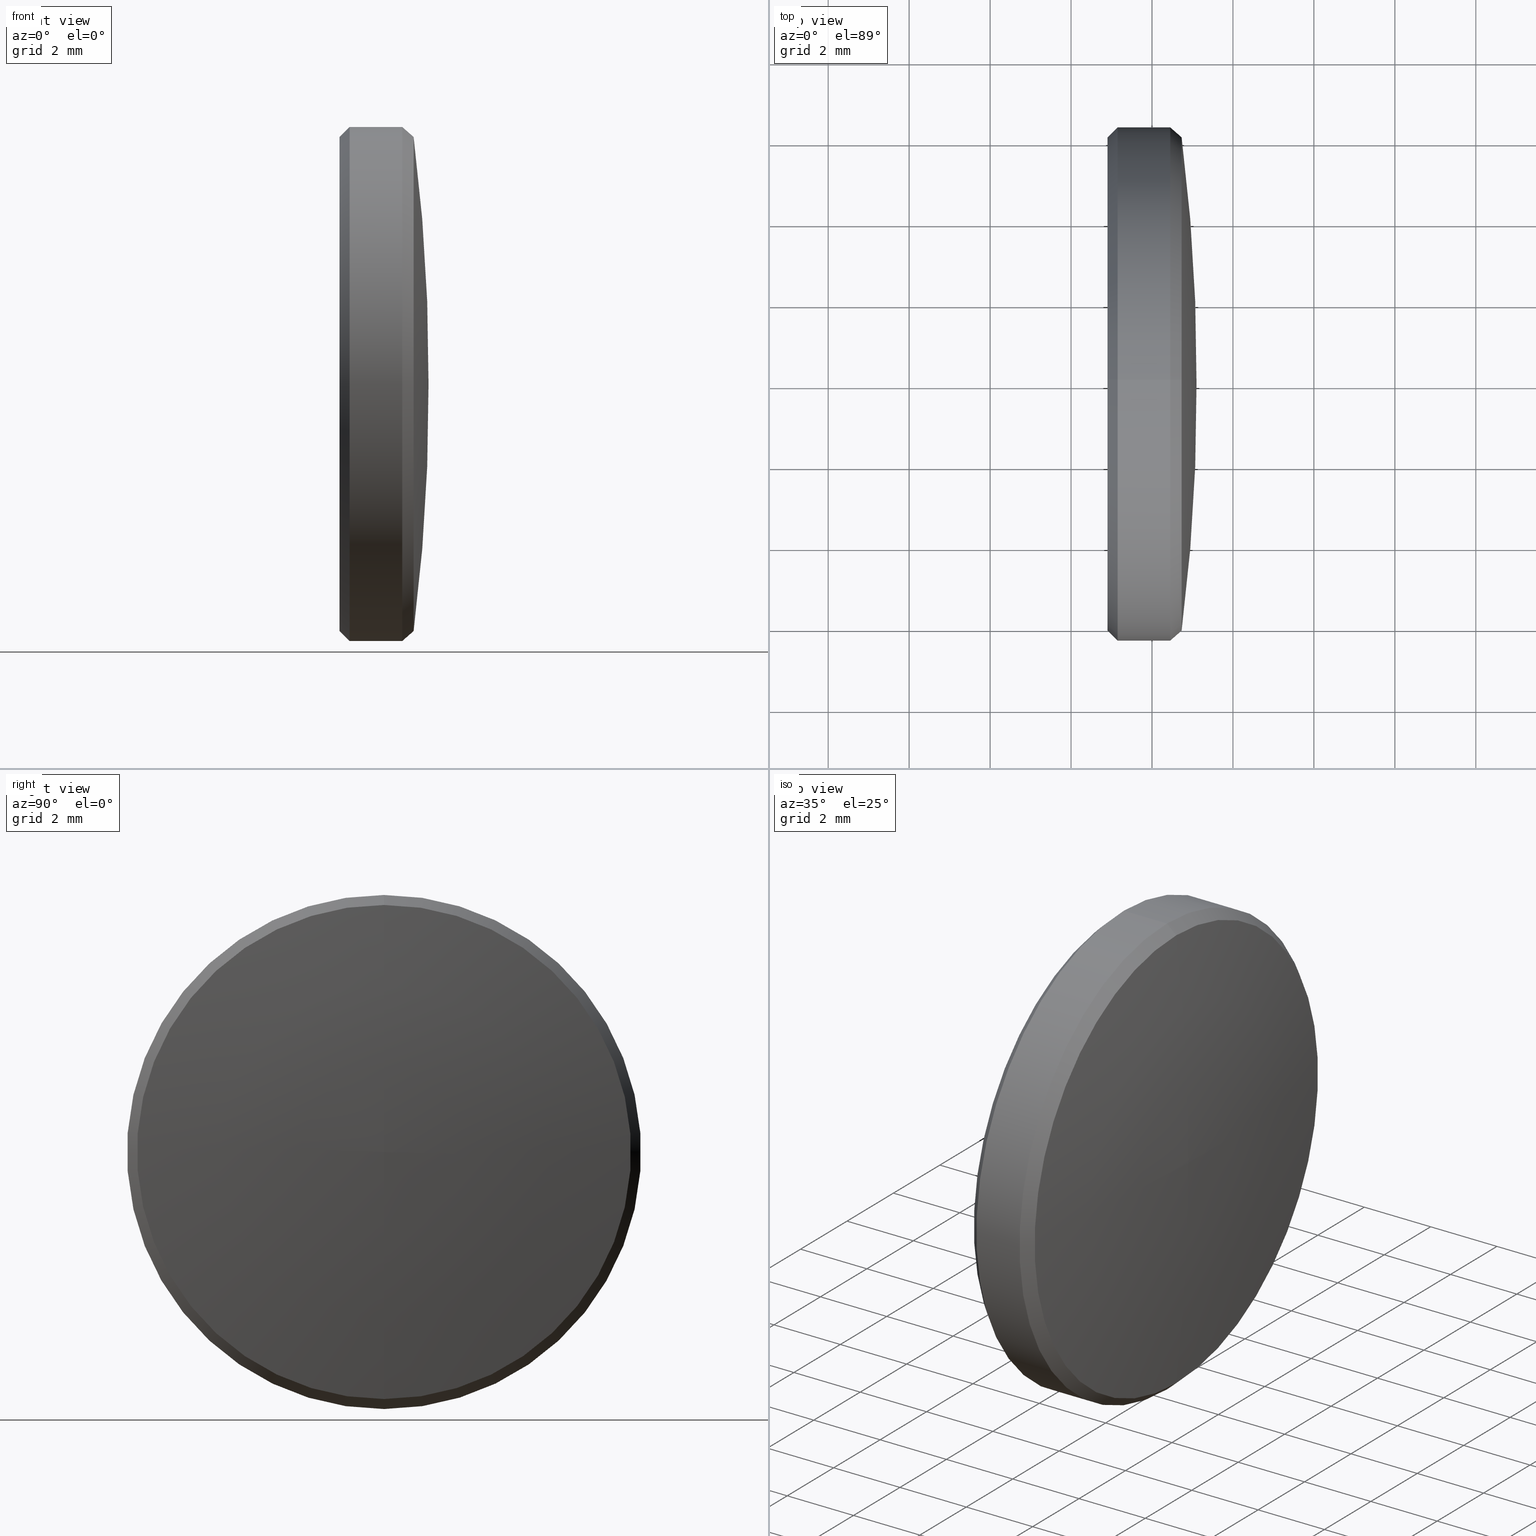
[diagram: canonical four-view strip — front | top / right | iso, engineering-drawing reading convention]
A machine part, canonical four-view strip (front | top / right | iso — engineering-drawing reading convention). The complete STEP part file that produces these views, byte-faithful:
ISO-10303-21;
HEADER;
FILE_DESCRIPTION (( 'STEP AP203' ),
    '1' );
FILE_NAME ('4277-E0W.STEP',
    '2015-05-29T14:20:30',
    ( 'admin' ),
    ( '' ),
    'SwSTEP 2.0',
    'SolidWorks 2014',
    '' );
FILE_SCHEMA (( 'CONFIG_CONTROL_DESIGN' ));
ENDSEC;

DATA;
#1 = VERTEX_POINT ( 'NONE', #218 ) ;
#2 = ORIENTED_EDGE ( 'NONE', *, *, #142, .F. ) ;
#3 = CARTESIAN_POINT ( 'NONE',  ( -44.89908574560622900, 0.0000000000000000000, 0.2900182207492126900 ) ) ;
#4 = DIRECTION ( 'NONE',  ( 0.0000000000000000000, 0.0000000000000000000, 1.000000000000000000 ) ) ;
#5 = LOCAL_TIME ( 10, 20, 30.00000000000000000, #172 ) ;
#6 = DIRECTION ( 'NONE',  ( 0.0000000000000000000, 0.0000000000000000000, 1.000000000000000000 ) ) ;
#7 = APPROVAL_STATUS ( 'not_yet_approved' ) ;
#8 = SECURITY_CLASSIFICATION_LEVEL ( 'unclassified' ) ;
#9 = PRODUCT_DEFINITION_FORMATION_WITH_SPECIFIED_SOURCE ( 'ANY', '', #139, .NOT_KNOWN. ) ;
#10 = APPROVAL_ROLE ( '' ) ;
#11 = MECHANICAL_CONTEXT ( 'NONE', #182, 'mechanical' ) ;
#12 = EDGE_LOOP ( 'NONE', ( #253, #68, #116 ) ) ;
#13 = ADVANCED_FACE ( 'NONE', ( #260 ), #167, .T. ) ;
#14 = DIRECTION ( 'NONE',  ( -1.000000000000000000, -0.0000000000000000000, -0.0000000000000000000 ) ) ;
#15 = EDGE_LOOP ( 'NONE', ( #60, #115 ) ) ;
#16 = FACE_OUTER_BOUND ( 'NONE', #112, .T. ) ;
#17 = DIRECTION ( 'NONE',  ( 1.000000000000000000, 0.0000000000000000000, 0.0000000000000000000 ) ) ;
#18 = APPLICATION_CONTEXT ( 'configuration controlled 3d designs of mechanical parts and assemblies' ) ;
#19 = CARTESIAN_POINT ( 'NONE',  ( 1.100000000000000100, 0.0000000000000000000, 0.0000000000000000000 ) ) ;
#20 = CONICAL_SURFACE ( 'NONE', #238, 6.100000000000001400, 0.7853981633974466100 ) ;
#21 = CALENDAR_DATE ( 2015, 29, 5 ) ;
#22 = CARTESIAN_POINT ( 'NONE',  ( -1.100000000000000100, 7.470345474798856300E-016, 6.100000000000001400 ) ) ;
#23 = AXIS2_PLACEMENT_3D ( 'NONE', #46, #184, #254 ) ;
#24 = FACE_OUTER_BOUND ( 'NONE', #15, .T. ) ;
#25 = EDGE_CURVE ( 'NONE', #119, #93, #273, .T. ) ;
#26 = CIRCLE ( 'NONE', #160, 6.350000000000002300 ) ;
#27 = DIRECTION ( 'NONE',  ( -1.000000000000000000, -0.0000000000000000000, -0.0000000000000000000 ) ) ;
#28 = CARTESIAN_POINT ( 'NONE',  ( 0.4499999999992704300, 7.776507174585695100E-016, -6.350000000000002300 ) ) ;
#29 = LOCAL_TIME ( 10, 20, 30.00000000000000000, #201 ) ;
#30 = FACE_OUTER_BOUND ( 'NONE', #118, .T. ) ;
#31 = AXIS2_PLACEMENT_3D ( 'NONE', #152, #48, #35 ) ;
#32 = ORIENTED_EDGE ( 'NONE', *, *, #194, .F. ) ;
#33 = AXIS2_PLACEMENT_3D ( 'NONE', #161, #174, #156 ) ;
#34 = DIRECTION ( 'NONE',  ( 0.0000000000000000000, 0.0000000000000000000, 1.000000000000000000 ) ) ;
#35 = DIRECTION ( 'NONE',  ( 0.0000000000000000000, 0.0000000000000000000, -1.000000000000000000 ) ) ;
#36 = DATE_AND_TIME ( #129, #5 ) ;
#37 = CIRCLE ( 'NONE', #40, 6.350000000000002300 ) ;
#38 = CARTESIAN_POINT ( 'NONE',  ( -0.8499999999999980900, 0.0000000000000000000, 0.0000000000000000000 ) ) ;
#39 = ORIENTED_EDGE ( 'NONE', *, *, #123, .T. ) ;
#40 = AXIS2_PLACEMENT_3D ( 'NONE', #38, #207, #209 ) ;
#41 = AXIS2_PLACEMENT_3D ( 'NONE', #153, #275, #168 ) ;
#42 = EDGE_LOOP ( 'NONE', ( #53, #131, #126, #82 ) ) ;
#43 = DATE_AND_TIME ( #200, #90 ) ;
#44 = CARTESIAN_POINT ( 'NONE',  ( -44.89908574560622900, 3.551698857349338500E-017, -0.2900182207492126900 ) ) ;
#45 = CIRCLE ( 'NONE', #211, 6.100000000000001400 ) ;
#46 = CARTESIAN_POINT ( 'NONE',  ( -1.100000000000000100, 0.0000000000000000000, 0.0000000000000000000 ) ) ;
#47 = FACE_OUTER_BOUND ( 'NONE', #146, .T. ) ;
#48 = DIRECTION ( 'NONE',  ( 1.000000000000000000, 0.0000000000000000000, 0.0000000000000000000 ) ) ;
#49 = EDGE_LOOP ( 'NONE', ( #203, #39, #133, #240 ) ) ;
#50 = DIRECTION ( 'NONE',  ( -0.7522428910702642100, 8.069025117982657200E-017, -0.6588859027436013700 ) ) ;
#51 = ORGANIZATION ( 'UNSPECIFIED', 'UNSPECIFIED', '' ) ;
#52 = DIRECTION ( 'NONE',  ( -1.000000000000000000, -0.0000000000000000000, -0.0000000000000000000 ) ) ;
#53 = ORIENTED_EDGE ( 'NONE', *, *, #282, .F. ) ;
#54 = AXIS2_PLACEMENT_3D ( 'NONE', #75, #27, #204 ) ;
#55 = PERSON_AND_ORGANIZATION_ROLE ( 'creator' ) ;
#56 = LINE ( 'NONE', #220, #185 ) ;
#57 = ORIENTED_EDGE ( 'NONE', *, *, #278, .T. ) ;
#58 = EDGE_CURVE ( 'NONE', #1, #63, #26, .T. ) ;
#59 = LOCAL_TIME ( 10, 20, 30.00000000000000000, #186 ) ;
#60 = ORIENTED_EDGE ( 'NONE', *, *, #150, .T. ) ;
#61 = CC_DESIGN_PERSON_AND_ORGANIZATION_ASSIGNMENT ( #242, #225, ( #154 ) ) ;
#62 = APPROVAL_PERSON_ORGANIZATION ( #134, #215, #244 ) ;
#63 = VERTEX_POINT ( 'NONE', #28 ) ;
#64 = CARTESIAN_POINT ( 'NONE',  ( 0.7321638494021294200, 7.473840680126849300E-016, -6.102854051740002300 ) ) ;
#65 = CC_DESIGN_APPROVAL ( #187, ( #136 ) ) ;
#66 = CARTESIAN_POINT ( 'NONE',  ( -1.100000000000000100, 0.0000000000000000000, -6.100000000000001400 ) ) ;
#67 = ORIENTED_EDGE ( 'NONE', *, *, #232, .T. ) ;
#68 = ORIENTED_EDGE ( 'NONE', *, *, #194, .T. ) ;
#69 = APPROVAL_STATUS ( 'not_yet_approved' ) ;
#70 = ORIENTED_EDGE ( 'NONE', *, *, #171, .F. ) ;
#71 = DATE_TIME_ROLE ( 'classification_date' ) ;
#72 = ORIENTED_EDGE ( 'NONE', *, *, #110, .T. ) ;
#73 = CARTESIAN_POINT ( 'NONE',  ( -44.89908574560622900, 0.0000000000000000000, 0.0000000000000000000 ) ) ;
#74 = CC_DESIGN_APPROVAL ( #215, ( #9 ) ) ;
#75 = CARTESIAN_POINT ( 'NONE',  ( 0.4499999999992704300, 0.0000000000000000000, 0.0000000000000000000 ) ) ;
#76 = CYLINDRICAL_SURFACE ( 'NONE', #41, 6.350000000000002300 ) ;
#77 = VERTEX_POINT ( 'NONE', #249 ) ;
#78 = DIRECTION ( 'NONE',  ( 0.7071067811865487900, 8.659560562354918100E-017, 0.7071067811865463500 ) ) ;
#79 = ADVANCED_FACE ( 'NONE', ( #16 ), #179, .T. ) ;
#80 = APPROVAL_PERSON_ORGANIZATION ( #125, #187, #199 ) ;
#81 = ORIENTED_EDGE ( 'NONE', *, *, #132, .F. ) ;
#82 = ORIENTED_EDGE ( 'NONE', *, *, #110, .F. ) ;
#83 = CARTESIAN_POINT ( 'NONE',  ( 0.4499999999992704300, 0.0000000000000000000, 0.0000000000000000000 ) ) ;
#84 = SHAPE_DEFINITION_REPRESENTATION ( #130, #206 ) ;
#85 = CARTESIAN_POINT ( 'NONE',  ( -0.8499999999999980900, 0.0000000000000000000, 6.350000000000002300 ) ) ;
#86 = ORIENTED_EDGE ( 'NONE', *, *, #98, .F. ) ;
#87 = CC_DESIGN_PERSON_AND_ORGANIZATION_ASSIGNMENT ( #104, #55, ( #9 ) ) ;
#88 = ORIENTED_EDGE ( 'NONE', *, *, #89, .T. ) ;
#89 = EDGE_CURVE ( 'NONE', #101, #103, #288, .T. ) ;
#90 = LOCAL_TIME ( 10, 20, 30.00000000000000000, #270 ) ;
#91 = AXIS2_PLACEMENT_3D ( 'NONE', #83, #256, #6 ) ;
#92 = CARTESIAN_POINT ( 'NONE',  ( 0.7321638494021294200, 0.0000000000000000000, 6.102854051740002300 ) ) ;
#93 = VERTEX_POINT ( 'NONE', #85 ) ;
#94 = DIRECTION ( 'NONE',  ( 1.000000000000000000, 0.0000000000000000000, 0.0000000000000000000 ) ) ;
#95 = AXIS2_PLACEMENT_3D ( 'NONE', #121, #17, #159 ) ;
#96 = CARTESIAN_POINT ( 'NONE',  ( -1.100000000000000100, 0.0000000000000000000, 0.0000000000000000000 ) ) ;
#97 = VERTEX_POINT ( 'NONE', #233 ) ;
#98 = EDGE_CURVE ( 'NONE', #97, #77, #281, .T. ) ;
#99 = FACE_OUTER_BOUND ( 'NONE', #49, .T. ) ;
#100 = AXIS2_PLACEMENT_3D ( 'NONE', #105, #301, #4 ) ;
#101 = VERTEX_POINT ( 'NONE', #19 ) ;
#102 = ORIENTED_EDGE ( 'NONE', *, *, #132, .T. ) ;
#103 = VERTEX_POINT ( 'NONE', #92 ) ;
#104 = PERSON_AND_ORGANIZATION ( #196, #51 ) ;
#105 = CARTESIAN_POINT ( 'NONE',  ( 0.7321638494021259800, 0.0000000000000000000, 0.0000000000000000000 ) ) ;
#106 = DIRECTION ( 'NONE',  ( -1.000000000000000000, -0.0000000000000000000, -0.0000000000000000000 ) ) ;
#107 = DIRECTION ( 'NONE',  ( 0.0000000000000000000, -1.224646799147353200E-016, 1.000000000000000000 ) ) ;
#108 = CLOSED_SHELL ( 'NONE', ( #13, #79, #224, #291, #128, #214, #135, #277, #241 ) ) ;
#109 = CIRCLE ( 'NONE', #100, 6.102854051739994300 ) ;
#110 = EDGE_CURVE ( 'NONE', #103, #1, #269, .T. ) ;
#111 = DIRECTION ( 'NONE',  ( 0.0000000000000000000, 0.0000000000000000000, -1.000000000000000000 ) ) ;
#112 = EDGE_LOOP ( 'NONE', ( #86, #102, #122, #2 ) ) ;
#113 = ORIENTED_EDGE ( 'NONE', *, *, #142, .T. ) ;
#114 = VECTOR ( 'NONE', #217, 1000.000000000000000 ) ;
#115 = ORIENTED_EDGE ( 'NONE', *, *, #98, .T. ) ;
#116 = ORIENTED_EDGE ( 'NONE', *, *, #282, .T. ) ;
#117 = PERSON_AND_ORGANIZATION ( #196, #51 ) ;
#118 = EDGE_LOOP ( 'NONE', ( #81, #251, #113, #151 ) ) ;
#119 = VERTEX_POINT ( 'NONE', #294 ) ;
#120 = AXIS2_PLACEMENT_3D ( 'NONE', #158, #289, #34 ) ;
#121 = CARTESIAN_POINT ( 'NONE',  ( 0.7321638494021259800, 0.0000000000000000000, 0.0000000000000000000 ) ) ;
#122 = ORIENTED_EDGE ( 'NONE', *, *, #25, .F. ) ;
#123 = EDGE_CURVE ( 'NONE', #63, #119, #56, .T. ) ;
#124 = APPROVAL_DATE_TIME ( #36, #215 ) ;
#125 = PERSON_AND_ORGANIZATION ( #196, #51 ) ;
#126 = ORIENTED_EDGE ( 'NONE', *, *, #58, .F. ) ;
#127 = AXIS2_PLACEMENT_3D ( 'NONE', #73, #106, #166 ) ;
#128 = ADVANCED_FACE ( 'NONE', ( #24 ), #236, .F. ) ;
#129 = CALENDAR_DATE ( 2015, 29, 5 ) ;
#130 = PRODUCT_DEFINITION_SHAPE ( 'NONE', 'NONE',  #136 ) ;
#131 = ORIENTED_EDGE ( 'NONE', *, *, #171, .T. ) ;
#132 = EDGE_CURVE ( 'NONE', #97, #93, #234, .T. ) ;
#133 = ORIENTED_EDGE ( 'NONE', *, *, #25, .T. ) ;
#134 = PERSON_AND_ORGANIZATION ( #196, #51 ) ;
#135 = ADVANCED_FACE ( 'NONE', ( #192 ), #197, .T. ) ;
#136 = PRODUCT_DEFINITION ( 'UNKNOWN', '', #9, #165 ) ;
#137 = CARTESIAN_POINT ( 'NONE',  ( -1.100000000000000100, 0.0000000000000000000, 0.0000000000000000000 ) ) ;
#138 = ORIENTED_EDGE ( 'NONE', *, *, #123, .F. ) ;
#139 = PRODUCT ( '4277-E0W', '4277-E0W', '', ( #11 ) ) ;
#140 = CONICAL_SURFACE ( 'NONE', #54, 6.350000000000002300, 0.7193367645129472600 ) ;
#141 = AXIS2_PLACEMENT_3D ( 'NONE', #271, #147, #94 ) ;
#142 = EDGE_CURVE ( 'NONE', #77, #119, #205, .T. ) ;
#143 = PERSON_AND_ORGANIZATION ( #196, #51 ) ;
#144 = CIRCLE ( 'NONE', #95, 6.102854051739994300 ) ;
#145 = UNCERTAINTY_MEASURE_WITH_UNIT (LENGTH_MEASURE( 1.000000000000000100E-005 ), #268, 'distance_accuracy_value', 'NONE');
#146 = EDGE_LOOP ( 'NONE', ( #70, #227, #72, #237 ) ) ;
#147 = DIRECTION ( 'NONE',  ( 0.0000000000000000000, 0.0000000000000000000, 1.000000000000000000 ) ) ;
#148 = ORIENTED_EDGE ( 'NONE', *, *, #267, .T. ) ;
#149 = CARTESIAN_POINT ( 'NONE',  ( -1.100000000000000100, 0.0000000000000000000, 0.0000000000000000000 ) ) ;
#150 = EDGE_CURVE ( 'NONE', #77, #97, #45, .T. ) ;
#151 = ORIENTED_EDGE ( 'NONE', *, *, #193, .F. ) ;
#152 = CARTESIAN_POINT ( 'NONE',  ( -0.8499999999999980900, 0.0000000000000000000, 0.0000000000000000000 ) ) ;
#153 = CARTESIAN_POINT ( 'NONE',  ( -1.100000000000000100, 0.0000000000000000000, 0.0000000000000000000 ) ) ;
#154 = SECURITY_CLASSIFICATION ( '', '', #8 ) ;
#155 = CALENDAR_DATE ( 2015, 29, 5 ) ;
#156 = DIRECTION ( 'NONE',  ( 0.0000000000000000000, 0.0000000000000000000, -1.000000000000000000 ) ) ;
#157 = CARTESIAN_POINT ( 'NONE',  ( 0.4499999999992704300, 0.0000000000000000000, 6.350000000000002300 ) ) ;
#158 = CARTESIAN_POINT ( 'NONE',  ( 0.4499999999992704300, 0.0000000000000000000, 0.0000000000000000000 ) ) ;
#159 = DIRECTION ( 'NONE',  ( 0.0000000000000000000, 0.0000000000000000000, 1.000000000000000000 ) ) ;
#160 = AXIS2_PLACEMENT_3D ( 'NONE', #259, #246, #247 ) ;
#161 = CARTESIAN_POINT ( 'NONE',  ( -1.100000000000000100, 0.0000000000000000000, 0.0000000000000000000 ) ) ;
#162 = CC_DESIGN_PERSON_AND_ORGANIZATION_ASSIGNMENT ( #262, #265, ( #139 ) ) ;
#163 = EDGE_LOOP ( 'NONE', ( #138, #57, #148, #298 ) ) ;
#164 = TOROIDAL_SURFACE ( 'NONE', #290, 0.2900182207492126900, 46.00000000000000700 ) ;
#165 = DESIGN_CONTEXT ( 'detailed design', #18, 'design' ) ;
#166 = DIRECTION ( 'NONE',  ( 0.0000000000000000000, 0.0000000000000000000, 1.000000000000000000 ) ) ;
#167 = CONICAL_SURFACE ( 'NONE', #120, 6.350000000000002300, 0.7193367645129472600 ) ;
#168 = DIRECTION ( 'NONE',  ( 0.0000000000000000000, 0.0000000000000000000, 1.000000000000000000 ) ) ;
#169 = CARTESIAN_POINT ( 'NONE',  ( -1.100000000000000100, 0.0000000000000000000, 0.0000000000000000000 ) ) ;
#170 = DIRECTION ( 'NONE',  ( -1.000000000000000000, -0.0000000000000000000, -0.0000000000000000000 ) ) ;
#171 = EDGE_CURVE ( 'NONE', #258, #63, #183, .T. ) ;
#172 = COORDINATED_UNIVERSAL_TIME_OFFSET ( 5, 0, .BEHIND. ) ;
#173 = CALENDAR_DATE ( 2015, 29, 5 ) ;
#174 = DIRECTION ( 'NONE',  ( 1.000000000000000000, 0.0000000000000000000, 0.0000000000000000000 ) ) ;
#175 = CC_DESIGN_PERSON_AND_ORGANIZATION_ASSIGNMENT ( #143, #243, ( #9 ) ) ;
#176 = EDGE_LOOP ( 'NONE', ( #32, #88, #67 ) ) ;
#177 = VECTOR ( 'NONE', #50, 1000.000000000000100 ) ;
#178 = AXIS2_PLACEMENT_3D ( 'NONE', #3, #297, #257 ) ;
#179 = CONICAL_SURFACE ( 'NONE', #33, 6.100000000000001400, 0.7853981633974466100 ) ;
#180 = DIRECTION ( 'NONE',  ( 0.0000000000000000000, 0.0000000000000000000, -1.000000000000000000 ) ) ;
#181 = APPROVAL_DATE_TIME ( #230, #299 ) ;
#182 = APPLICATION_CONTEXT ( 'configuration controlled 3d designs of mechanical parts and assemblies' ) ;
#183 = LINE ( 'NONE', #190, #177 ) ;
#184 = DIRECTION ( 'NONE',  ( 1.000000000000000000, 0.0000000000000000000, 0.0000000000000000000 ) ) ;
#185 = VECTOR ( 'NONE', #52, 1000.000000000000000 ) ;
#186 = COORDINATED_UNIVERSAL_TIME_OFFSET ( 5, 0, .BEHIND. ) ;
#187 = APPROVAL ( #252, 'UNSPECIFIED' ) ;
#188 = DIRECTION ( 'NONE',  ( -0.7522428910702642100, 0.0000000000000000000, 0.6588859027436013700 ) ) ;
#189 = VECTOR ( 'NONE', #78, 1000.000000000000000 ) ;
#190 = CARTESIAN_POINT ( 'NONE',  ( 0.4499999999992704300, 7.776507174585695100E-016, -6.350000000000002300 ) ) ;
#191 = CARTESIAN_POINT ( 'NONE',  ( -1.100000000000000100, 0.0000000000000000000, 6.350000000000002300 ) ) ;
#192 = FACE_OUTER_BOUND ( 'NONE', #176, .T. ) ;
#193 = EDGE_CURVE ( 'NONE', #93, #119, #37, .T. ) ;
#194 = EDGE_CURVE ( 'NONE', #101, #258, #210, .T. ) ;
#195 = DATE_AND_TIME ( #21, #59 ) ;
#196 = PERSON ( 'UNSPECIFIED', 'UNSPECIFIED', 'UNSPECIFIED', ('UNSPECIFIED'), ('UNSPECIFIED'), ('UNSPECIFIED') ) ;
#197 = TOROIDAL_SURFACE ( 'NONE', #127, 0.2900182207492126900, 46.00000000000000700 ) ;
#198 = DIRECTION ( 'NONE',  ( -1.000000000000000000, -0.0000000000000000000, -0.0000000000000000000 ) ) ;
#199 = APPROVAL_ROLE ( '' ) ;
#200 = CALENDAR_DATE ( 2015, 29, 5 ) ;
#201 = COORDINATED_UNIVERSAL_TIME_OFFSET ( 5, 0, .BEHIND. ) ;
#202 = APPROVAL_DATE_TIME ( #293, #187 ) ;
#203 = ORIENTED_EDGE ( 'NONE', *, *, #58, .T. ) ;
#204 = DIRECTION ( 'NONE',  ( 0.0000000000000000000, 0.0000000000000000000, 1.000000000000000000 ) ) ;
#205 = LINE ( 'NONE', #66, #231 ) ;
#206 = ADVANCED_BREP_SHAPE_REPRESENTATION ( '4277-E0W', ( #226, #141 ), #223 ) ;
#207 = DIRECTION ( 'NONE',  ( 1.000000000000000000, 0.0000000000000000000, 0.0000000000000000000 ) ) ;
#208 = CC_DESIGN_PERSON_AND_ORGANIZATION_ASSIGNMENT ( #222, #263, ( #136 ) ) ;
#209 = DIRECTION ( 'NONE',  ( 0.0000000000000000000, 0.0000000000000000000, -1.000000000000000000 ) ) ;
#210 = CIRCLE ( 'NONE', #245, 46.00000000000000700 ) ;
#211 = AXIS2_PLACEMENT_3D ( 'NONE', #96, #170, #111 ) ;
#212 = DIRECTION ( 'NONE',  ( 0.0000000000000000000, 0.0000000000000000000, 1.000000000000000000 ) ) ;
#213 = FACE_OUTER_BOUND ( 'NONE', #12, .T. ) ;
#214 = ADVANCED_FACE ( 'NONE', ( #248 ), #76, .T. ) ;
#215 = APPROVAL ( #69, 'UNSPECIFIED' ) ;
#216 = DIRECTION ( 'NONE',  ( 1.000000000000000000, 0.0000000000000000000, 0.0000000000000000000 ) ) ;
#217 = DIRECTION ( 'NONE',  ( -1.000000000000000000, -0.0000000000000000000, -0.0000000000000000000 ) ) ;
#218 = CARTESIAN_POINT ( 'NONE',  ( 0.4499999999992704300, 0.0000000000000000000, 6.350000000000002300 ) ) ;
#219 = CC_DESIGN_SECURITY_CLASSIFICATION ( #154, ( #9 ) ) ;
#220 = CARTESIAN_POINT ( 'NONE',  ( -1.100000000000000100, 7.776507174585695100E-016, -6.350000000000002300 ) ) ;
#221 = CARTESIAN_POINT ( 'NONE',  ( -44.89908574560622900, 0.0000000000000000000, 0.0000000000000000000 ) ) ;
#222 = PERSON_AND_ORGANIZATION ( #196, #51 ) ;
#223 =( GEOMETRIC_REPRESENTATION_CONTEXT ( 3 ) GLOBAL_UNCERTAINTY_ASSIGNED_CONTEXT ( ( #145 ) ) GLOBAL_UNIT_ASSIGNED_CONTEXT ( ( #268, #280, #272 ) ) REPRESENTATION_CONTEXT ( 'NONE', 'WORKASPACE' ) );
#224 = ADVANCED_FACE ( 'NONE', ( #213 ), #164, .T. ) ;
#225 = PERSON_AND_ORGANIZATION_ROLE ( 'classification_officer' ) ;
#226 = MANIFOLD_SOLID_BREP ( '4277-001-1-solid1', #108 ) ;
#227 = ORIENTED_EDGE ( 'NONE', *, *, #232, .F. ) ;
#228 = VECTOR ( 'NONE', #188, 1000.000000000000100 ) ;
#229 = DIRECTION ( 'NONE',  ( 0.0000000000000000000, 0.0000000000000000000, 1.000000000000000000 ) ) ;
#230 = DATE_AND_TIME ( #173, #29 ) ;
#231 = VECTOR ( 'NONE', #261, 1000.000000000000000 ) ;
#232 = EDGE_CURVE ( 'NONE', #103, #258, #109, .T. ) ;
#233 = CARTESIAN_POINT ( 'NONE',  ( -1.100000000000000100, 7.623426324692276200E-016, 6.100000000000001400 ) ) ;
#234 = LINE ( 'NONE', #22, #189 ) ;
#235 = CC_DESIGN_DATE_AND_TIME_ASSIGNMENT ( #195, #285, ( #136 ) ) ;
#236 = PLANE ( 'NONE',  #23 ) ;
#237 = ORIENTED_EDGE ( 'NONE', *, *, #278, .F. ) ;
#238 = AXIS2_PLACEMENT_3D ( 'NONE', #137, #216, #239 ) ;
#239 = DIRECTION ( 'NONE',  ( 0.0000000000000000000, 0.0000000000000000000, -1.000000000000000000 ) ) ;
#240 = ORIENTED_EDGE ( 'NONE', *, *, #267, .F. ) ;
#241 = ADVANCED_FACE ( 'NONE', ( #47 ), #140, .T. ) ;
#242 = PERSON_AND_ORGANIZATION ( #196, #51 ) ;
#243 = PERSON_AND_ORGANIZATION_ROLE ( 'design_supplier' ) ;
#244 = APPROVAL_ROLE ( '' ) ;
#245 = AXIS2_PLACEMENT_3D ( 'NONE', #44, #284, #107 ) ;
#246 = DIRECTION ( 'NONE',  ( -1.000000000000000000, -0.0000000000000000000, -0.0000000000000000000 ) ) ;
#247 = DIRECTION ( 'NONE',  ( 0.0000000000000000000, 0.0000000000000000000, 1.000000000000000000 ) ) ;
#248 = FACE_OUTER_BOUND ( 'NONE', #163, .T. ) ;
#249 = CARTESIAN_POINT ( 'NONE',  ( -1.100000000000000100, 0.0000000000000000000, -6.100000000000001400 ) ) ;
#250 = DIRECTION ( 'NONE',  ( -1.000000000000000000, -0.0000000000000000000, -0.0000000000000000000 ) ) ;
#251 = ORIENTED_EDGE ( 'NONE', *, *, #150, .F. ) ;
#252 = APPROVAL_STATUS ( 'not_yet_approved' ) ;
#253 = ORIENTED_EDGE ( 'NONE', *, *, #89, .F. ) ;
#254 = DIRECTION ( 'NONE',  ( 0.0000000000000000000, 0.0000000000000000000, -1.000000000000000000 ) ) ;
#255 = COORDINATED_UNIVERSAL_TIME_OFFSET ( 5, 0, .BEHIND. ) ;
#256 = DIRECTION ( 'NONE',  ( -1.000000000000000000, -0.0000000000000000000, -0.0000000000000000000 ) ) ;
#257 = DIRECTION ( 'NONE',  ( 0.0000000000000000000, 0.0000000000000000000, -1.000000000000000000 ) ) ;
#258 = VERTEX_POINT ( 'NONE', #64 ) ;
#259 = CARTESIAN_POINT ( 'NONE',  ( 0.4499999999992704300, 0.0000000000000000000, 0.0000000000000000000 ) ) ;
#260 = FACE_OUTER_BOUND ( 'NONE', #42, .T. ) ;
#261 = DIRECTION ( 'NONE',  ( 0.7071067811865487900, 0.0000000000000000000, -0.7071067811865463500 ) ) ;
#262 = PERSON_AND_ORGANIZATION ( #196, #51 ) ;
#263 = PERSON_AND_ORGANIZATION_ROLE ( 'creator' ) ;
#264 = AXIS2_PLACEMENT_3D ( 'NONE', #169, #250, #229 ) ;
#265 = PERSON_AND_ORGANIZATION_ROLE ( 'design_owner' ) ;
#266 = CC_DESIGN_APPROVAL ( #299, ( #154 ) ) ;
#267 = EDGE_CURVE ( 'NONE', #1, #93, #295, .T. ) ;
#268 =( LENGTH_UNIT ( ) NAMED_UNIT ( * ) SI_UNIT ( .MILLI., .METRE. ) );
#269 = LINE ( 'NONE', #157, #228 ) ;
#270 = COORDINATED_UNIVERSAL_TIME_OFFSET ( 5, 0, .BEHIND. ) ;
#271 = CARTESIAN_POINT ( 'NONE',  ( 0.0000000000000000000, 0.0000000000000000000, 0.0000000000000000000 ) ) ;
#272 =( NAMED_UNIT ( * ) SI_UNIT ( $, .STERADIAN. ) SOLID_ANGLE_UNIT ( ) );
#273 = CIRCLE ( 'NONE', #31, 6.350000000000002300 ) ;
#274 = AXIS2_PLACEMENT_3D ( 'NONE', #149, #14, #180 ) ;
#275 = DIRECTION ( 'NONE',  ( -1.000000000000000000, -0.0000000000000000000, -0.0000000000000000000 ) ) ;
#276 = APPLICATION_PROTOCOL_DEFINITION ( 'international standard', 'config_control_design', 1994, #18 ) ;
#277 = ADVANCED_FACE ( 'NONE', ( #30 ), #20, .T. ) ;
#278 = EDGE_CURVE ( 'NONE', #63, #1, #300, .T. ) ;
#279 = APPROVAL_PERSON_ORGANIZATION ( #117, #299, #10 ) ;
#280 =( NAMED_UNIT ( * ) PLANE_ANGLE_UNIT ( ) SI_UNIT ( $, .RADIAN. ) );
#281 = CIRCLE ( 'NONE', #274, 6.100000000000001400 ) ;
#282 = EDGE_CURVE ( 'NONE', #258, #103, #144, .T. ) ;
#283 = APPLICATION_PROTOCOL_DEFINITION ( 'international standard', 'config_control_design', 1994, #182 ) ;
#284 = DIRECTION ( 'NONE',  ( -0.0000000000000000000, 1.000000000000000000, 1.224646799147353200E-016 ) ) ;
#285 = DATE_TIME_ROLE ( 'creation_date' ) ;
#286 = LOCAL_TIME ( 10, 20, 30.00000000000000000, #255 ) ;
#287 = CYLINDRICAL_SURFACE ( 'NONE', #264, 6.350000000000002300 ) ;
#288 = CIRCLE ( 'NONE', #178, 46.00000000000000700 ) ;
#289 = DIRECTION ( 'NONE',  ( -1.000000000000000000, -0.0000000000000000000, -0.0000000000000000000 ) ) ;
#290 = AXIS2_PLACEMENT_3D ( 'NONE', #221, #198, #212 ) ;
#291 = ADVANCED_FACE ( 'NONE', ( #99 ), #287, .T. ) ;
#292 = CC_DESIGN_DATE_AND_TIME_ASSIGNMENT ( #43, #71, ( #154 ) ) ;
#293 = DATE_AND_TIME ( #155, #286 ) ;
#294 = CARTESIAN_POINT ( 'NONE',  ( -0.8499999999999980900, 7.776507174585695100E-016, -6.350000000000002300 ) ) ;
#295 = LINE ( 'NONE', #191, #114 ) ;
#296 = PRODUCT_RELATED_PRODUCT_CATEGORY ( 'detail', '', ( #139 ) ) ;
#297 = DIRECTION ( 'NONE',  ( 0.0000000000000000000, -1.000000000000000000, 0.0000000000000000000 ) ) ;
#298 = ORIENTED_EDGE ( 'NONE', *, *, #193, .T. ) ;
#299 = APPROVAL ( #7, 'UNSPECIFIED' ) ;
#300 = CIRCLE ( 'NONE', #91, 6.350000000000002300 ) ;
#301 = DIRECTION ( 'NONE',  ( 1.000000000000000000, 0.0000000000000000000, 0.0000000000000000000 ) ) ;
ENDSEC;
END-ISO-10303-21;
